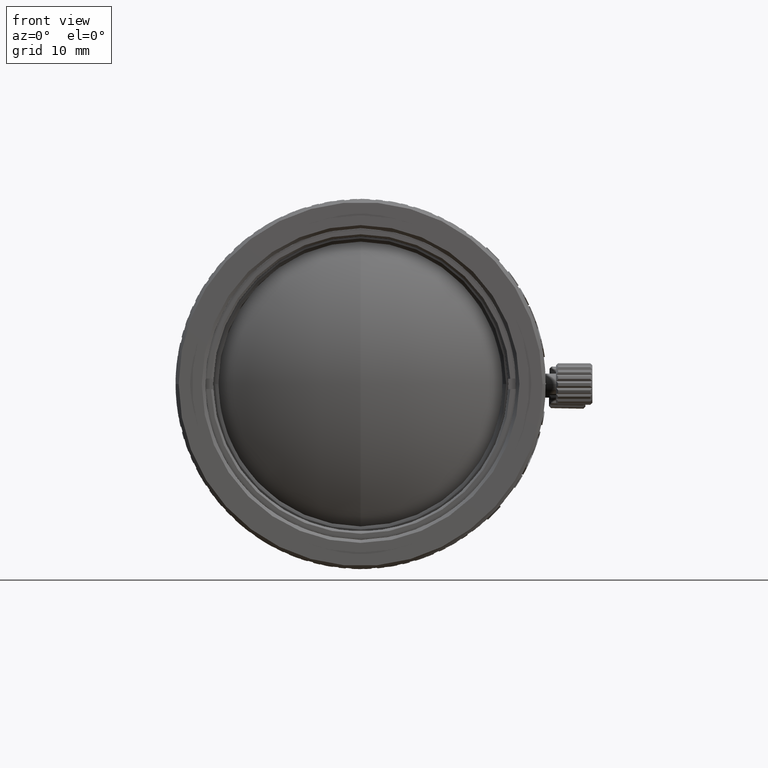
[diagram: clean part render]
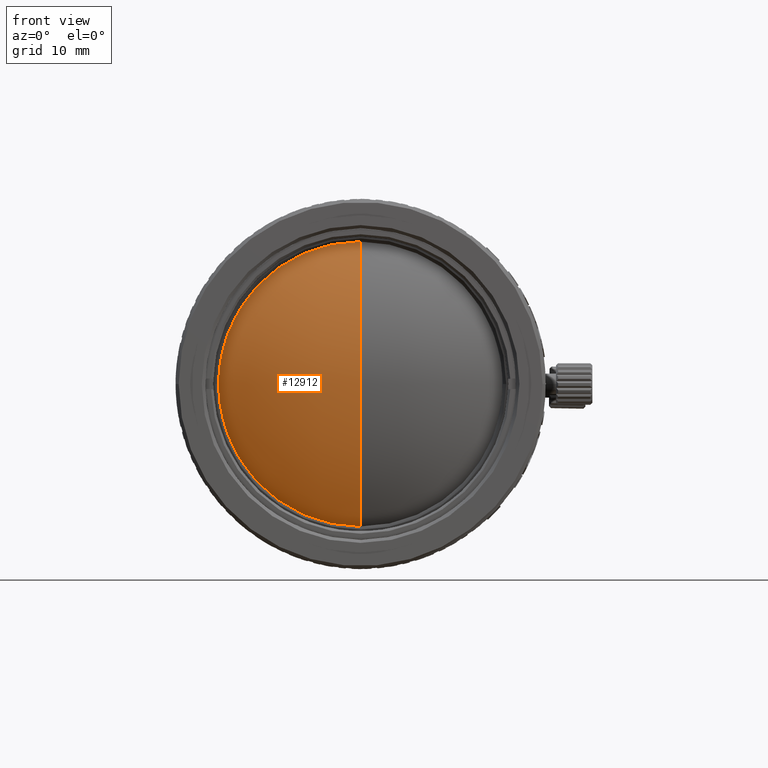
[diagram: same view with one face highlighted and labeled with its STEP entity id]
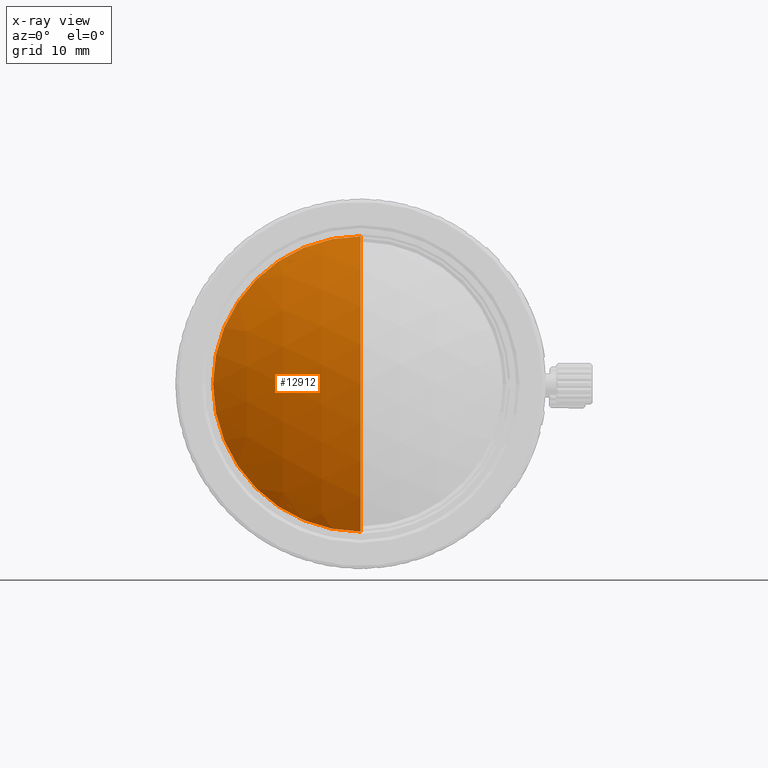
[diagram: x-ray of the same camera — body ghosted, the highlighted face saturated]
A machine part, front view. The second image highlights one B-rep face of the part: STEP entity #12912.
The next image is the same camera in x-ray: the body ghosted, the highlighted face saturated — about 0% of this face is hidden behind the body in this view.
In plain terms, the highlighted spherical surface has radius 24.6293 mm.
Its self-contained STEP definition (entity closure, byte-faithful):
#5679 = AXIS2_PLACEMENT_3D ( 'NONE', #36924, #48673, #58672 ) ;
#6308 = ORIENTED_EDGE ( 'NONE', *, *, #19422, .T. ) ;
#12912 = ADVANCED_FACE ( 'NONE', ( #26578 ), #47625, .T. ) ;
#13633 = AXIS2_PLACEMENT_3D ( 'NONE', #37441, #25326, #59193 ) ;
#19422 = EDGE_CURVE ( 'NONE', #66627, #40147, #46577, .T. ) ;
#23808 = DIRECTION ( 'NONE',  ( 1.000000000000000000, -3.384214796231588426E-16, 7.993076391610530306E-16 ) ) ;
#25326 = DIRECTION ( 'NONE',  ( -0.000000000000000000, 1.000000000000000000, 0.000000000000000000 ) ) ;
#26578 = FACE_OUTER_BOUND ( 'NONE', #40982, .T. ) ;
#29688 = ORIENTED_EDGE ( 'NONE', *, *, #36052, .F. ) ;
#30050 = CARTESIAN_POINT ( 'NONE',  ( 17.50001204310000347, -9.933293143780360879, -31.70001170252022149 ) ) ;
#34286 = ORIENTED_EDGE ( 'NONE', *, *, #60892, .F. ) ;
#36052 = EDGE_CURVE ( 'NONE', #61756, #40147, #54589, .T. ) ;
#36924 = CARTESIAN_POINT ( 'NONE',  ( 17.50001204310002123, 10.19035921010003420, -17.50001170252001970 ) ) ;
#37408 = AXIS2_PLACEMENT_3D ( 'NONE', #46262, #23808, #51630 ) ;
#37441 = CARTESIAN_POINT ( 'NONE',  ( 17.50001204309999636, -9.933293143780360879, -17.50001170252000193 ) ) ;
#40147 = VERTEX_POINT ( 'NONE', #56369 ) ;
#40982 = EDGE_LOOP ( 'NONE', ( #34286, #6308, #29688 ) ) ;
#41820 = DIRECTION ( 'NONE',  ( -7.043338442740466563E-16, 0.000000000000000000, 1.000000000000000000 ) ) ;
#45400 = AXIS2_PLACEMENT_3D ( 'NONE', #48231, #58917, #41820 ) ;
#46262 = CARTESIAN_POINT ( 'NONE',  ( 17.50001204310002123, 10.19035921010003420, -17.50001170252001970 ) ) ;
#46577 = CIRCLE ( 'NONE', #45400, 24.62927900000003234 ) ;
#47625 = SPHERICAL_SURFACE ( 'NONE', #5679, 24.62927900000003234 ) ;
#48231 = CARTESIAN_POINT ( 'NONE',  ( 17.50001204310002123, 10.19035921010003420, -17.50001170252001970 ) ) ;
#48471 = CARTESIAN_POINT ( 'NONE',  ( 17.50001204310001413, -14.43891978989999814, -17.50001170252001970 ) ) ;
#48673 = DIRECTION ( 'NONE',  ( 1.000000000000000000, -3.384214796231588426E-16, 7.043338442740466563E-16 ) ) ;
#51630 = DIRECTION ( 'NONE',  ( 8.452006131288558495E-16, 0.000000000000000000, -1.000000000000000000 ) ) ;
#52160 = CIRCLE ( 'NONE', #37408, 24.62927900000003589 ) ;
#54589 = CIRCLE ( 'NONE', #13633, 14.20000000000021956 ) ;
#56369 = CARTESIAN_POINT ( 'NONE',  ( 17.50001204309999636, -9.933293143780360879, -3.300011702519784151 ) ) ;
#58672 = DIRECTION ( 'NONE',  ( -7.043338442740466563E-16, 0.000000000000000000, 1.000000000000000000 ) ) ;
#58917 = DIRECTION ( 'NONE',  ( -1.000000000000000000, 3.384214796231588426E-16, -6.768429592463176853E-16 ) ) ;
#59193 = DIRECTION ( 'NONE',  ( 0.000000000000000000, 0.000000000000000000, 1.000000000000000000 ) ) ;
#60892 = EDGE_CURVE ( 'NONE', #66627, #61756, #52160, .T. ) ;
#61756 = VERTEX_POINT ( 'NONE', #30050 ) ;
#66627 = VERTEX_POINT ( 'NONE', #48471 ) ;